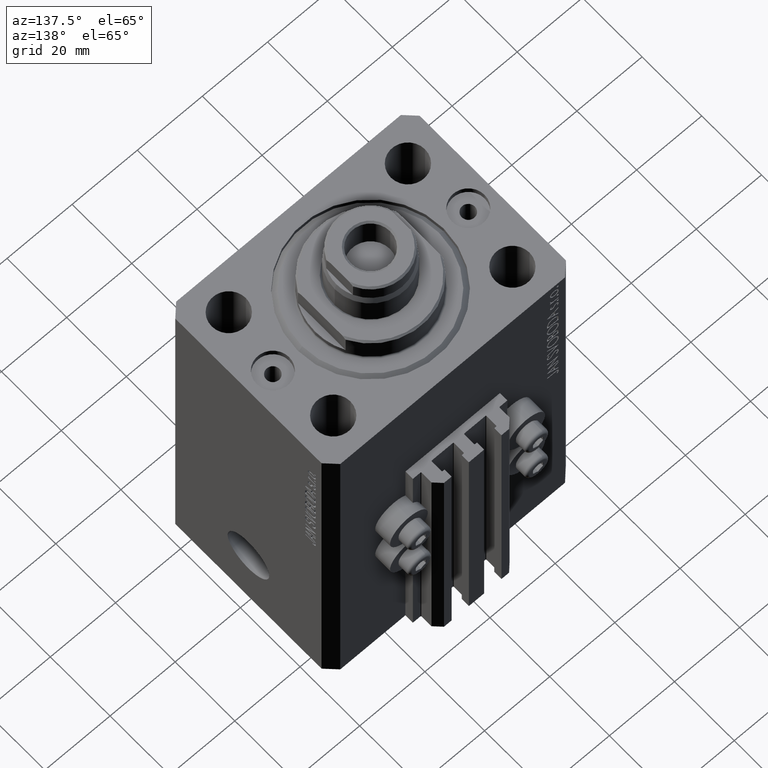
[diagram: clean part render]
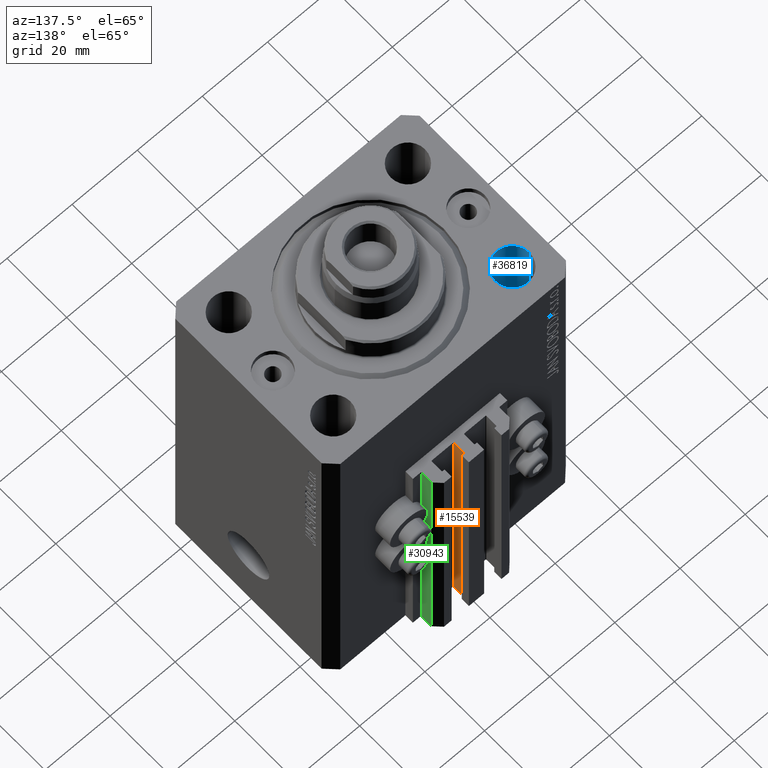
[diagram: same view with three faces highlighted in distinct colors, each labeled with its STEP entity id]
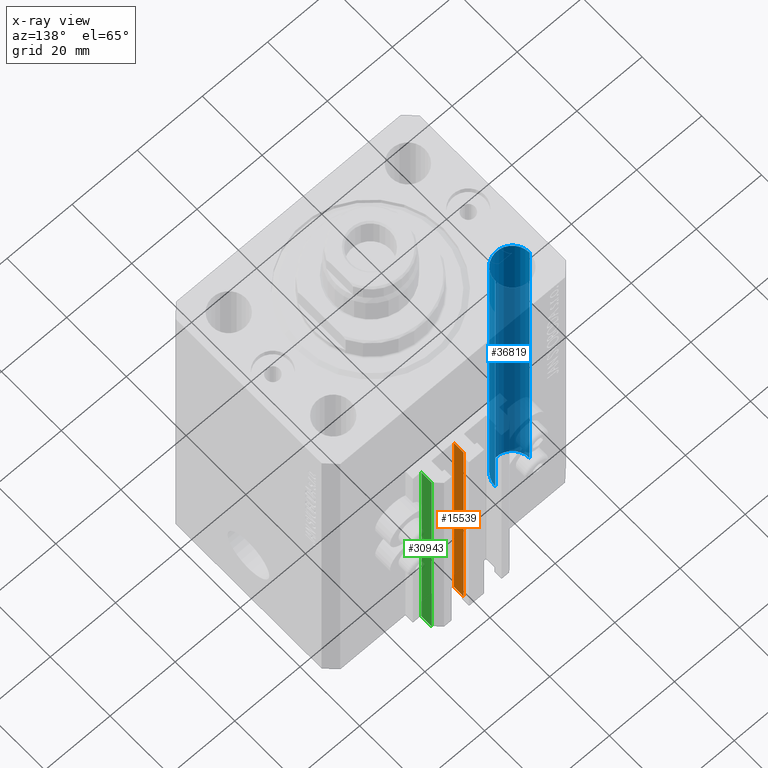
[diagram: x-ray of the same camera — body ghosted, the three highlighted faces saturated]
A machine part, auxiliary view with three faces highlighted in distinct colors.
The next image is the same camera in x-ray (body ghosted, the three faces saturated) — at least one of them is partly hidden behind the body in this view.
Their STEP definitions:

[orange] entity #15539 — the highlighted planar face has unit normal (1, 0, 0).
#393 = VECTOR ( 'NONE', #41718, 1000.000000000000000 ) ;
#1656 = LINE ( 'NONE', #9447, #17009 ) ;
#2455 = LINE ( 'NONE', #19964, #393 ) ;
#2822 = DIRECTION ( 'NONE',  ( 0.000000000000000000, 0.000000000000000000, 1.000000000000000000 ) ) ;
#3385 = EDGE_CURVE ( 'NONE', #27287, #11068, #2455, .T. ) ;
#6368 = DIRECTION ( 'NONE',  ( 0.000000000000000000, 0.000000000000000000, 1.000000000000000000 ) ) ;
#8671 = CARTESIAN_POINT ( 'NONE',  ( 1.599999999999999645, 29.69999999999999929, -33.00000000000000000 ) ) ;
#9145 = ORIENTED_EDGE ( 'NONE', *, *, #28900, .T. ) ;
#9447 = CARTESIAN_POINT ( 'NONE',  ( 1.600000000000000533, 29.69999999999999929, -33.00000000000000000 ) ) ;
#9536 = CARTESIAN_POINT ( 'NONE',  ( 1.600000000000000533, 32.90000000000001279, -33.00000000000000000 ) ) ;
#9919 = CARTESIAN_POINT ( 'NONE',  ( 1.600000000000000533, 32.90000000000001279, -110.0000000000000000 ) ) ;
#11068 = VERTEX_POINT ( 'NONE', #24561 ) ;
#11158 = EDGE_CURVE ( 'NONE', #27287, #21077, #42089, .T. ) ;
#12828 = VERTEX_POINT ( 'NONE', #9536 ) ;
#13516 = VECTOR ( 'NONE', #2822, 1000.000000000000000 ) ;
#14614 = DIRECTION ( 'NONE',  ( 0.000000000000000000, 0.000000000000000000, -1.000000000000000000 ) ) ;
#15413 = ORIENTED_EDGE ( 'NONE', *, *, #3385, .T. ) ;
#15539 = ADVANCED_FACE ( 'NONE', ( #33550 ), #25746, .T. ) ;
#17009 = VECTOR ( 'NONE', #34074, 1000.000000000000000 ) ;
#19964 = CARTESIAN_POINT ( 'NONE',  ( 1.600000000000000533, 29.69999999999999929, -110.0000000000000000 ) ) ;
#21077 = VERTEX_POINT ( 'NONE', #8671 ) ;
#23892 = LINE ( 'NONE', #9919, #30587 ) ;
#24561 = CARTESIAN_POINT ( 'NONE',  ( 1.600000000000000533, 32.90000000000001279, -110.0000000000000000 ) ) ;
#25746 = PLANE ( 'NONE',  #45348 ) ;
#27287 = VERTEX_POINT ( 'NONE', #39172 ) ;
#28900 = EDGE_CURVE ( 'NONE', #11068, #12828, #23892, .T. ) ;
#30127 = EDGE_CURVE ( 'NONE', #21077, #12828, #1656, .T. ) ;
#30587 = VECTOR ( 'NONE', #6368, 1000.000000000000000 ) ;
#31052 = ORIENTED_EDGE ( 'NONE', *, *, #11158, .F. ) ;
#32604 = DIRECTION ( 'NONE',  ( 1.000000000000000000, 0.000000000000000000, 0.000000000000000000 ) ) ;
#33550 = FACE_OUTER_BOUND ( 'NONE', #34105, .T. ) ;
#34074 = DIRECTION ( 'NONE',  ( 0.000000000000000000, 1.000000000000000000, 0.000000000000000000 ) ) ;
#34105 = EDGE_LOOP ( 'NONE', ( #36476, #31052, #15413, #9145 ) ) ;
#36476 = ORIENTED_EDGE ( 'NONE', *, *, #30127, .F. ) ;
#39172 = CARTESIAN_POINT ( 'NONE',  ( 1.599999999999999645, 29.69999999999999929, -110.0000000000000000 ) ) ;
#39709 = CARTESIAN_POINT ( 'NONE',  ( 1.600000000000000533, 29.69999999999999929, -110.0000000000000000 ) ) ;
#41718 = DIRECTION ( 'NONE',  ( 0.000000000000000000, 1.000000000000000000, 0.000000000000000000 ) ) ;
#42089 = LINE ( 'NONE', #42772, #13516 ) ;
#42772 = CARTESIAN_POINT ( 'NONE',  ( 1.599999999999999645, 29.69999999999999929, -110.0000000000000000 ) ) ;
#45348 = AXIS2_PLACEMENT_3D ( 'NONE', #39709, #32604, #14614 ) ;

[blue] entity #36819 — the highlighted cylindrical surface (edge-blend (fillet) strip) has radius 5.25 mm, axis along (0, 0, 1).
#833 = CIRCLE ( 'NONE', #35588, 5.250000000000000888 ) ;
#870 = VERTEX_POINT ( 'NONE', #40225 ) ;
#2981 = ORIENTED_EDGE ( 'NONE', *, *, #36490, .T. ) ;
#9751 = VECTOR ( 'NONE', #39455, 1000.000000000000000 ) ;
#10861 = CIRCLE ( 'NONE', #37321, 5.250000000000000888 ) ;
#10873 = ORIENTED_EDGE ( 'NONE', *, *, #21247, .T. ) ;
#12269 = LINE ( 'NONE', #37363, #23750 ) ;
#13133 = CARTESIAN_POINT ( 'NONE',  ( -22.25000000000000000, 17.49999999999999645, -110.0000000000000000 ) ) ;
#13354 = CARTESIAN_POINT ( 'NONE',  ( -27.50000000000000000, 17.49999999999999645, -110.0000000000000000 ) ) ;
#13747 = CARTESIAN_POINT ( 'NONE',  ( -22.25000000000000000, 17.49999999999999645, 0.000000000000000000 ) ) ;
#17359 = CARTESIAN_POINT ( 'NONE',  ( -32.75000000000000000, 17.49999999999999645, 0.000000000000000000 ) ) ;
#18429 = EDGE_LOOP ( 'NONE', ( #10873, #2981, #29734, #27152 ) ) ;
#20042 = DIRECTION ( 'NONE',  ( 1.000000000000000000, 0.000000000000000000, 0.000000000000000000 ) ) ;
#20747 = EDGE_CURVE ( 'NONE', #44345, #30714, #12269, .T. ) ;
#21247 = EDGE_CURVE ( 'NONE', #44345, #870, #10861, .T. ) ;
#22173 = CARTESIAN_POINT ( 'NONE',  ( -32.75000000000000000, 17.49999999999999645, -124.8492424049175042 ) ) ;
#23355 = CARTESIAN_POINT ( 'NONE',  ( -27.50000000000000000, 17.49999999999999645, -124.8492424049175042 ) ) ;
#23750 = VECTOR ( 'NONE', #45390, 1000.000000000000000 ) ;
#26913 = CYLINDRICAL_SURFACE ( 'NONE', #28670, 5.250000000000000888 ) ;
#27152 = ORIENTED_EDGE ( 'NONE', *, *, #20747, .F. ) ;
#28670 = AXIS2_PLACEMENT_3D ( 'NONE', #23355, #41571, #20042 ) ;
#29734 = ORIENTED_EDGE ( 'NONE', *, *, #41905, .T. ) ;
#30714 = VERTEX_POINT ( 'NONE', #13747 ) ;
#35588 = AXIS2_PLACEMENT_3D ( 'NONE', #38775, #42328, #36379 ) ;
#36379 = DIRECTION ( 'NONE',  ( 1.000000000000000000, 0.000000000000000000, 0.000000000000000000 ) ) ;
#36490 = EDGE_CURVE ( 'NONE', #870, #37246, #43932, .T. ) ;
#36819 = ADVANCED_FACE ( 'NONE', ( #37555 ), #26913, .F. ) ;
#37246 = VERTEX_POINT ( 'NONE', #17359 ) ;
#37321 = AXIS2_PLACEMENT_3D ( 'NONE', #13354, #46452, #42218 ) ;
#37363 = CARTESIAN_POINT ( 'NONE',  ( -22.25000000000000000, 17.49999999999999645, -124.8492424049175042 ) ) ;
#37555 = FACE_OUTER_BOUND ( 'NONE', #18429, .T. ) ;
#38775 = CARTESIAN_POINT ( 'NONE',  ( -27.50000000000000000, 17.49999999999999645, 0.000000000000000000 ) ) ;
#39455 = DIRECTION ( 'NONE',  ( -0.000000000000000000, -0.000000000000000000, 1.000000000000000000 ) ) ;
#40225 = CARTESIAN_POINT ( 'NONE',  ( -32.75000000000000000, 17.49999999999999645, -110.0000000000000000 ) ) ;
#41571 = DIRECTION ( 'NONE',  ( -0.000000000000000000, -0.000000000000000000, 1.000000000000000000 ) ) ;
#41905 = EDGE_CURVE ( 'NONE', #37246, #30714, #833, .T. ) ;
#42218 = DIRECTION ( 'NONE',  ( 1.000000000000000000, 0.000000000000000000, 0.000000000000000000 ) ) ;
#42328 = DIRECTION ( 'NONE',  ( 0.000000000000000000, 0.000000000000000000, 1.000000000000000000 ) ) ;
#43932 = LINE ( 'NONE', #22173, #9751 ) ;
#44345 = VERTEX_POINT ( 'NONE', #13133 ) ;
#45390 = DIRECTION ( 'NONE',  ( -0.000000000000000000, -0.000000000000000000, 1.000000000000000000 ) ) ;
#46452 = DIRECTION ( 'NONE',  ( -0.000000000000000000, -0.000000000000000000, -1.000000000000000000 ) ) ;

[green] entity #30943 — the highlighted planar face has unit normal (1, 0, 0).
#2610 = EDGE_CURVE ( 'NONE', #33616, #35172, #10673, .T. ) ;
#3311 = CARTESIAN_POINT ( 'NONE',  ( 12.00000000000000178, 30.20000000000002061, -110.0000000000000000 ) ) ;
#7128 = DIRECTION ( 'NONE',  ( -5.256737805990334897E-16, 1.000000000000000000, 0.000000000000000000 ) ) ;
#7503 = ORIENTED_EDGE ( 'NONE', *, *, #2610, .T. ) ;
#7740 = EDGE_LOOP ( 'NONE', ( #44154, #31775, #7503, #25485 ) ) ;
#7751 = VERTEX_POINT ( 'NONE', #42397 ) ;
#9331 = VECTOR ( 'NONE', #7128, 1000.000000000000000 ) ;
#10673 = LINE ( 'NONE', #25106, #9331 ) ;
#11824 = DIRECTION ( 'NONE',  ( -5.256737805990335883E-16, 1.000000000000000000, 0.000000000000000000 ) ) ;
#12927 = VECTOR ( 'NONE', #21743, 1000.000000000000000 ) ;
#15104 = VERTEX_POINT ( 'NONE', #25603 ) ;
#20232 = DIRECTION ( 'NONE',  ( 0.000000000000000000, 0.000000000000000000, 1.000000000000000000 ) ) ;
#21743 = DIRECTION ( 'NONE',  ( 0.000000000000000000, 0.000000000000000000, 1.000000000000000000 ) ) ;
#21900 = LINE ( 'NONE', #33026, #23441 ) ;
#21974 = LINE ( 'NONE', #3311, #12927 ) ;
#22330 = AXIS2_PLACEMENT_3D ( 'NONE', #44706, #44471, #11824 ) ;
#23227 = CARTESIAN_POINT ( 'NONE',  ( 12.00000000000000000, 33.50000000000001421, -110.0000000000000000 ) ) ;
#23441 = VECTOR ( 'NONE', #39887, 1000.000000000000000 ) ;
#25106 = CARTESIAN_POINT ( 'NONE',  ( 12.00000000000000178, 30.20000000000002061, -110.0000000000000000 ) ) ;
#25485 = ORIENTED_EDGE ( 'NONE', *, *, #33875, .T. ) ;
#25603 = CARTESIAN_POINT ( 'NONE',  ( 12.00000000000000000, 33.50000000000001421, -33.00000000000000000 ) ) ;
#30943 = ADVANCED_FACE ( 'NONE', ( #44232 ), #36677, .T. ) ;
#31775 = ORIENTED_EDGE ( 'NONE', *, *, #41322, .F. ) ;
#33026 = CARTESIAN_POINT ( 'NONE',  ( 12.00000000000000178, 30.20000000000002061, -33.00000000000000000 ) ) ;
#33616 = VERTEX_POINT ( 'NONE', #35414 ) ;
#33875 = EDGE_CURVE ( 'NONE', #35172, #15104, #38211, .T. ) ;
#34901 = CARTESIAN_POINT ( 'NONE',  ( 12.00000000000000000, 33.50000000000001421, -110.0000000000000000 ) ) ;
#35172 = VERTEX_POINT ( 'NONE', #23227 ) ;
#35414 = CARTESIAN_POINT ( 'NONE',  ( 12.00000000000000178, 30.20000000000002061, -110.0000000000000000 ) ) ;
#36677 = PLANE ( 'NONE',  #22330 ) ;
#38211 = LINE ( 'NONE', #34901, #38244 ) ;
#38244 = VECTOR ( 'NONE', #20232, 1000.000000000000000 ) ;
#39887 = DIRECTION ( 'NONE',  ( -5.256737805990334897E-16, 1.000000000000000000, 0.000000000000000000 ) ) ;
#41322 = EDGE_CURVE ( 'NONE', #33616, #7751, #21974, .T. ) ;
#42397 = CARTESIAN_POINT ( 'NONE',  ( 12.00000000000000178, 30.20000000000002061, -33.00000000000000000 ) ) ;
#43150 = EDGE_CURVE ( 'NONE', #7751, #15104, #21900, .T. ) ;
#44154 = ORIENTED_EDGE ( 'NONE', *, *, #43150, .F. ) ;
#44232 = FACE_OUTER_BOUND ( 'NONE', #7740, .T. ) ;
#44471 = DIRECTION ( 'NONE',  ( 1.000000000000000000, 5.256737805990335883E-16, -0.000000000000000000 ) ) ;
#44706 = CARTESIAN_POINT ( 'NONE',  ( 12.00000000000000178, 30.20000000000002061, -110.0000000000000000 ) ) ;